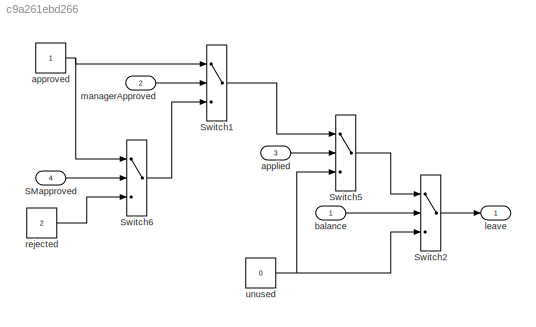
MODEL slx_c9a261ebd266
KIND model
CONFIG AbsTol = auto
CONFIG EnableMultiTasking = off
CONFIG FixedStep = auto
CONFIG MaxStep = auto
CONFIG MinStep = auto
CONFIG RelTol = 1e-3
CONFIG SampleTimeConstraint = Unconstrained
CONFIG Solver = FixedStepAuto
CONFIG SolverName = FixedStepAuto
CONFIG StartTime = 0.0
CONFIG StopTime = 100
BLOCK [Inport] SMapproved
  IconDisplay = Port number
  Port = 4
BLOCK [Switch] Switch1
  Criteria = u2 ~= 0
  InputSameDT = off
  SaturateOnIntegerOverflow = off
BLOCK [Switch] Switch2
  Criteria = u2 ~= 0
  InputSameDT = off
  SaturateOnIntegerOverflow = off
BLOCK [Switch] Switch5
  Criteria = u2 ~= 0
  InputSameDT = off
  SaturateOnIntegerOverflow = off
BLOCK [Switch] Switch6
  Criteria = u2 ~= 0
  InputSameDT = off
  SaturateOnIntegerOverflow = off
BLOCK [Inport] applied
  IconDisplay = Port number
  Port = 3
BLOCK [Constant] approved
BLOCK [Inport] balance
  IconDisplay = Port number
BLOCK [Outport] leave
  IconDisplay = Port number
BLOCK [Inport] managerApproved
  IconDisplay = Port number
  Port = 2
BLOCK [Constant] rejected
  Value = 2
BLOCK [Constant] unused
  Value = 0
LINE SMapproved:1 -> Switch6:2
LINE Switch1:1 -> Switch5:1
LINE Switch2:1 -> leave:1
LINE Switch5:1 -> Switch2:1
LINE Switch6:1 -> Switch1:3
LINE applied:1 -> Switch5:2
NET approved:1 -> Switch1:1, Switch6:1
LINE balance:1 -> Switch2:2
LINE managerApproved:1 -> Switch1:2
LINE rejected:1 -> Switch6:3
NET unused:1 -> Switch2:3, Switch5:3
note: NET lines group one-source signal fan-out (src -> all destinations, sorted); 1:1 wires keep LINE
